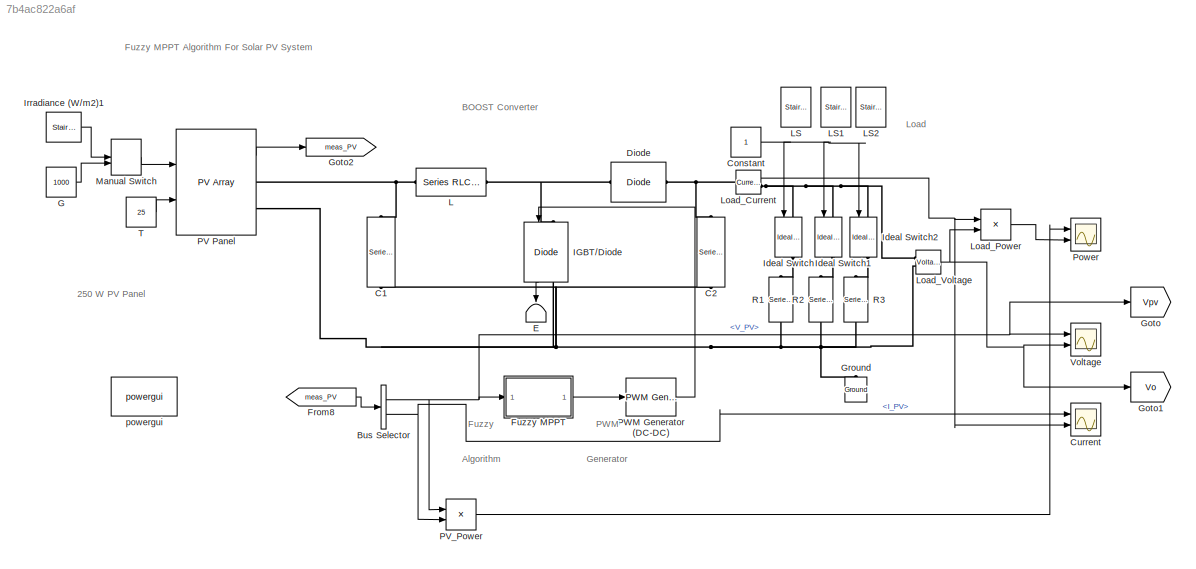
MODEL slx_7b4ac822a6af
KIND model
CONFIG AbsTol = auto
CONFIG EnableMultiTasking = on
CONFIG FixedStep = 1e-5
CONFIG MaxStep = 1e-4
CONFIG MinStep = auto
CONFIG RelTol = 10e-4
CONFIG SampleTimeConstraint = Unconstrained
CONFIG SolverName = ode45
CONFIG StartTime = 0.0
CONFIG StopTime = 1
BLOCK [BusSelector] Bus Selector
  OutputSignals = V_PV,I_PV
  Ports = [1, 2]
BLOCK [Reference] C1  REF=spsSeriesRLCBranchLib/Series RLC Branch
  NameLocation = right
  Ports = [0, 0, 0, 0, 0, 1, 1]
  SourceBlock = spsSeriesRLCBranchLib/Series RLC Branch
  SourceProductBaseCode = PS
  SourceType = Series RLC Branch
BLOCK [Reference] C2  REF=spsSeriesRLCBranchLib/Series RLC Branch
  NameLocation = right
  Ports = [0, 0, 0, 0, 0, 1, 1]
  SourceBlock = spsSeriesRLCBranchLib/Series RLC Branch
  SourceProductBaseCode = PS
  SourceType = Series RLC Branch
BLOCK [Constant] Constant
BLOCK [Scope] Current
  Floating = off
  NumInputPorts = 2
  Ports = [2]
  ScopeSpecificationString = Simulink.scopes.TimeScopeBlockCfg('CurrentConfiguration', extmgr.ConfigurationSet(extmgr.Configuration('Core','General UI',true,'FigureColor',[1 1 1]),extmgr.Configuration('Core','Source UI',true),extmgr.Configuration('Sources','WiredSimulink',true,'DataLoggingVariableName','ScopeData2'),extmgr.Configuration('Visuals','Time Domain',true,'SerializedDisplays',{struct('MinYLimReal','-1.07397','MaxYLi...<+3850ch>
BLOCK [Reference] Diode  REF=spsDiodeLib/Diode
  Ports = [0, 0, 0, 0, 0, 1, 1]
  SourceBlock = spsDiodeLib/Diode
  SourceProductBaseCode = PS
  SourceType = Diode
BLOCK [Terminator] E
  NameLocation = left
BLOCK [From] From8
  CloseFcn = tagdialog Close
  GotoTag = meas_PV
  TagVisibility = global
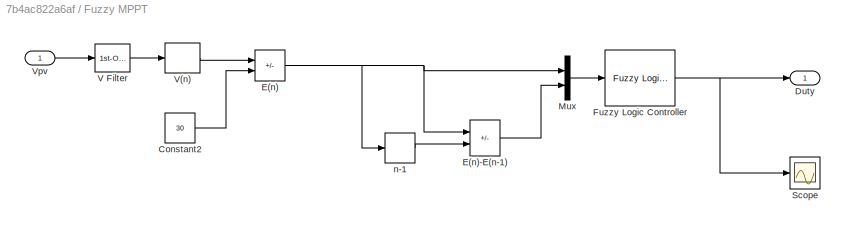
BLOCK [SubSystem] Fuzzy MPPT
  Ports = [1, 1]
  RequestExecContextInheritance = off
BLOCK [Constant] Fuzzy MPPT/Constant2
  Value = 30
BLOCK [Outport] Fuzzy MPPT/Duty
  VectorParamsAs1DForOutWhenUnconnected = off
BLOCK [Sum] Fuzzy MPPT/E(n)
  IconShape = rectangular
  Inputs = +-
  Ports = [2, 1]
BLOCK [Sum] Fuzzy MPPT/E(n)-E(n-1)
  IconShape = rectangular
  Inputs = -+
  Ports = [2, 1]
BLOCK [Reference] Fuzzy MPPT/Fuzzy Logic Controller  REF=fuzblock/Fuzzy Logic   (lib defined in mdl_858b3b3e7478)
Controller
  Ports = [1, 1]
  SourceBlock = fuzblock/Fuzzy Logic \nController
  SourceProductBaseCode = FL
  SourceType = Fuzzy Inference System
BLOCK [Mux] Fuzzy MPPT/Mux
  DisplayOption = bar
  Inputs = 2
  Ports = [2, 1]
BLOCK [Scope] Fuzzy MPPT/Scope
  Floating = off
  NumInputPorts = 1
  Ports = [1]
  ScopeSpecificationString = Simulink.scopes.TimeScopeBlockCfg('CurrentConfiguration', extmgr.ConfigurationSet(extmgr.Configuration('Core','General UI',true),extmgr.Configuration('Core','Source UI',true),extmgr.Configuration('Sources','WiredSimulink',true,'DataLoggingVariableName','ScopeData1'),extmgr.Configuration('Visuals','Time Domain',true,'SerializedDisplays',{struct('MinYLimReal','0.02855','MaxYLimReal','0.8281','YLabel...<+1430ch>
BLOCK [Reference] Fuzzy MPPT/V Filter  REF=powerlib_extras/Control 
Blocks/1st-Order 
Filter
  Ports = [1, 1]
  SourceBlock = powerlib_extras/Control \nBlocks/1st-Order \nFilter
  SourceProductBaseCode = PS
  SourceType = First-Order Filter
BLOCK [ZeroOrderHold] Fuzzy MPPT/V(n)
  SampleTime = 1e-4
BLOCK [Inport] Fuzzy MPPT/Vpv
BLOCK [Memory] Fuzzy MPPT/n-1
  InheritSampleTime = on
  LinearizeAsDelay = on
BLOCK [Constant] G
  Value = 1000
BLOCK [Goto] Goto
  GotoTag = Vpv
  TagVisibility = global
BLOCK [Goto] Goto1
  GotoTag = Vo
  TagVisibility = global
BLOCK [Goto] Goto2
  GotoTag = meas_PV
  TagVisibility = global
BLOCK [Reference] Ground  REF=spsGroundLib/Ground
  NameLocation = right
  Ports = [0, 0, 0, 0, 0, 1]
  SourceBlock = spsGroundLib/Ground
  SourceProductBaseCode = PS
  SourceType = Ground
BLOCK [Reference] IGBT//Diode  REF=spsIGBTDiodeLib/IGBT//Diode
  NameLocation = left
  Ports = [1, 1, 0, 0, 0, 1, 1]
  SourceBlock = spsIGBTDiodeLib/IGBT//Diode
  SourceProductBaseCode = PS
  SourceType = IGBT/Diode
BLOCK [Reference] Ideal Switch  REF=spsIdealSwitchLib/Ideal Switch
  NameLocation = left
  Ports = [1, 1, 0, 0, 0, 1, 1]
  SourceBlock = spsIdealSwitchLib/Ideal Switch
  SourceProductBaseCode = PS
  SourceType = Ideal Switch
BLOCK [Reference] Ideal Switch1  REF=spsIdealSwitchLib/Ideal Switch
  NameLocation = left
  Ports = [1, 1, 0, 0, 0, 1, 1]
  SourceBlock = spsIdealSwitchLib/Ideal Switch
  SourceProductBaseCode = PS
  SourceType = Ideal Switch
BLOCK [Reference] Ideal Switch2  REF=spsIdealSwitchLib/Ideal Switch
  NameLocation = left
  Ports = [1, 1, 0, 0, 0, 1, 1]
  SourceBlock = spsIdealSwitchLib/Ideal Switch
  SourceProductBaseCode = PS
  SourceType = Ideal Switch
BLOCK [Reference] Irradiance (W//m2)1  REF=spsStairGeneratorLib/Stair
Generator
  NameLocation = top
  Ports = [0, 1]
  SourceBlock = spsStairGeneratorLib/Stair\nGenerator
  SourceProductBaseCode = PS
  SourceType = Stair Generator
BLOCK [Reference] L  REF=spsSeriesRLCBranchLib/Series RLC Branch
  Ports = [0, 0, 0, 0, 0, 1, 1]
  SourceBlock = spsSeriesRLCBranchLib/Series RLC Branch
  SourceProductBaseCode = PS
  SourceType = Series RLC Branch
BLOCK [Reference] LS  REF=spsStairGeneratorLib/Stair
Generator
  NameLocation = right
  Ports = [0, 1]
  SourceBlock = spsStairGeneratorLib/Stair\nGenerator
  SourceProductBaseCode = PS
  SourceType = Stair Generator
BLOCK [Reference] LS1  REF=spsStairGeneratorLib/Stair
Generator
  NameLocation = right
  Ports = [0, 1]
  SourceBlock = spsStairGeneratorLib/Stair\nGenerator
  SourceProductBaseCode = PS
  SourceType = Stair Generator
BLOCK [Reference] LS2  REF=spsStairGeneratorLib/Stair
Generator
  NameLocation = right
  Ports = [0, 1]
  SourceBlock = spsStairGeneratorLib/Stair\nGenerator
  SourceProductBaseCode = PS
  SourceType = Stair Generator
BLOCK [Reference] Load_Current  REF=spsCurrentMeasurementLib/Current Measurement
  Ports = [0, 1, 0, 0, 0, 1, 1]
  SourceBlock = spsCurrentMeasurementLib/Current Measurement
  SourceProductBaseCode = PS
  SourceType = Current Measurement
  UserDataPersistent = on
BLOCK [Product] Load_Power
  Ports = [2, 1]
  RndMeth = Zero
BLOCK [Reference] Load_Voltage  REF=spsVoltageMeasurementLib/Voltage Measurement
  Ports = [0, 1, 0, 0, 0, 2]
  SourceBlock = spsVoltageMeasurementLib/Voltage Measurement
  SourceProductBaseCode = PS
  SourceType = Voltage Measurement
  UserDataPersistent = on
BLOCK [ManualSwitch] Manual Switch
  CurrentSetting = 0
BLOCK [Reference] PV Panel  REF=spsPVArrayLib/PV Array
  AttributesFormatString = %<ModuleName>\n%<Nser>-module string\n%<Npar> parallel strings
  Ports = [2, 1, 0, 0, 0, 0, 2]
  SourceBlock = spsPVArrayLib/PV Array
  SourceProductBaseCode = PS
  SourceType = PV array
BLOCK [Product] PV_Power
  Ports = [2, 1]
  RndMeth = Zero
BLOCK [Reference] PWM Generator (DC-DC)  REF=spsPWMGeneratorDCDCLib/PWM Generator
(DC-DC)
  Ports = [1, 1]
  SourceBlock = spsPWMGeneratorDCDCLib/PWM Generator\n(DC-DC)
  SourceProductBaseCode = PS
  SourceType = PWM Generator (DC-DC)
BLOCK [Scope] Power
  Floating = off
  NumInputPorts = 2
  Ports = [2]
  ScopeSpecificationString = Simulink.scopes.TimeScopeBlockCfg('CurrentConfiguration', extmgr.ConfigurationSet(extmgr.Configuration('Core','General UI',true,'FigureColor',[1 1 1]),extmgr.Configuration('Core','Source UI',true),extmgr.Configuration('Sources','WiredSimulink',true),extmgr.Configuration('Visuals','Time Domain',true,'SerializedDisplays',{struct('MinYLimReal','-31.70236','MaxYLimReal','285.32982','YLabelReal','','Mi...<+3850ch>
BLOCK [Reference] R1  REF=spsSeriesRLCBranchLib/Series RLC Branch
  NameLocation = left
  Ports = [0, 0, 0, 0, 0, 1, 1]
  SourceBlock = spsSeriesRLCBranchLib/Series RLC Branch
  SourceProductBaseCode = PS
  SourceType = Series RLC Branch
BLOCK [Reference] R2  REF=spsSeriesRLCBranchLib/Series RLC Branch
  NameLocation = left
  Ports = [0, 0, 0, 0, 0, 1, 1]
  SourceBlock = spsSeriesRLCBranchLib/Series RLC Branch
  SourceProductBaseCode = PS
  SourceType = Series RLC Branch
BLOCK [Reference] R3  REF=spsSeriesRLCBranchLib/Series RLC Branch
  NameLocation = left
  Ports = [0, 0, 0, 0, 0, 1, 1]
  SourceBlock = spsSeriesRLCBranchLib/Series RLC Branch
  SourceProductBaseCode = PS
  SourceType = Series RLC Branch
BLOCK [Constant] T
  Value = 25
BLOCK [Scope] Voltage
  Floating = off
  NumInputPorts = 2
  Ports = [2]
  ScopeSpecificationString = Simulink.scopes.TimeScopeBlockCfg('CurrentConfiguration', extmgr.ConfigurationSet(extmgr.Configuration('Core','General UI',true,'FigureColor',[1 1 1]),extmgr.Configuration('Core','Source UI',true),extmgr.Configuration('Sources','WiredSimulink',true,'DataLoggingVariableName','ScopeData1'),extmgr.Configuration('Visuals','Time Domain',true,'SerializedDisplays',{struct('MinYLimReal','-4.64678','MaxYLi...<+3874ch>
BLOCK [Reference] powergui  REF=spspowerguiLib/powergui
  Ports = []
  Priority = 1
  SourceBlock = spspowerguiLib/powergui
  SourceProductBaseCode = PS
  SourceType = PSB option menu block
ANNOTATION (root): 250 W PV Panel
ANNOTATION (root): BOOST Converter
ANNOTATION (root): Fuzzy Algorithm
ANNOTATION (root): Fuzzy MPPT Algorithm For Solar PV System
ANNOTATION (root): Load
ANNOTATION (root): PWM Generator
NET Bus Selector:1 -> Fuzzy MPPT:1, Goto:1, PV_Power:1, Voltage:1
NET Bus Selector:2 -> Current:1, PV_Power:2
NET Constant:1 -> Ideal Switch1:1, Ideal Switch2:1, Ideal Switch:1
LINE From8:1 -> Bus Selector:1
LINE Fuzzy MPPT/Constant2:1 -> Fuzzy MPPT/E(n):2
LINE Fuzzy MPPT/E(n)-E(n-1):1 -> Fuzzy MPPT/Mux:2
NET Fuzzy MPPT/E(n):1 -> Fuzzy MPPT/E(n)-E(n-1):1, Fuzzy MPPT/Mux:1, Fuzzy MPPT/n-1:1
NET Fuzzy MPPT/Fuzzy Logic Controller:1 -> Fuzzy MPPT/Duty:1, Fuzzy MPPT/Scope:1
LINE Fuzzy MPPT/Mux:1 -> Fuzzy MPPT/Fuzzy Logic Controller:1
LINE Fuzzy MPPT/V Filter:1 -> Fuzzy MPPT/V(n):1
LINE Fuzzy MPPT/V(n):1 -> Fuzzy MPPT/E(n):1
LINE Fuzzy MPPT/Vpv:1 -> Fuzzy MPPT/V Filter:1
LINE Fuzzy MPPT/n-1:1 -> Fuzzy MPPT/E(n)-E(n-1):2
LINE Fuzzy MPPT:1 -> PWM Generator (DC-DC):1
LINE G:1 -> Manual Switch:2
LINE IGBT//Diode:1 -> E:1
LINE Irradiance (W//m2)1:1 -> Manual Switch:1
NET Load_Current:1 -> Current:2, Load_Power:1
LINE Load_Power:1 -> Power:2
NET Load_Voltage:1 -> Goto1:1, Load_Power:2, Voltage:2
LINE Manual Switch:1 -> PV Panel:1
LINE PV Panel:1 -> Goto2:1
LINE PV_Power:1 -> Power:1
LINE PWM Generator (DC-DC):1 -> IGBT//Diode:1
LINE T:1 -> PV Panel:2
PNET net1: C1:LConn1 -- C2:LConn1 -- Ground:LConn1 -- IGBT//Diode:RConn1 -- Load_Voltage:LConn2 -- PV Panel:RConn2 -- R1:RConn1 -- R2:RConn1 -- R3:RConn1
PNET net2: C1:RConn1 -- L:LConn1 -- PV Panel:RConn1
PNET net3: C2:RConn1 -- Diode:RConn1 -- Load_Current:LConn1
PNET net4: Diode:LConn1 -- IGBT//Diode:LConn1 -- L:RConn1
PNET net5: Ideal Switch1:LConn1 -- Ideal Switch2:LConn1 -- Ideal Switch:LConn1 -- Load_Current:RConn1 -- Load_Voltage:LConn1
PLINE Ideal Switch1:RConn1 -- R2:LConn1
PLINE Ideal Switch2:RConn1 -- R3:LConn1
PLINE Ideal Switch:RConn1 -- R1:LConn1
note: NET lines group one-source signal fan-out (src -> all destinations, sorted); 1:1 wires keep LINE; PNET lines group multi-terminal physical nets as a canonical sorted terminal list (undirected conserving connections); 2-terminal nets keep the pairwise PLINE form
